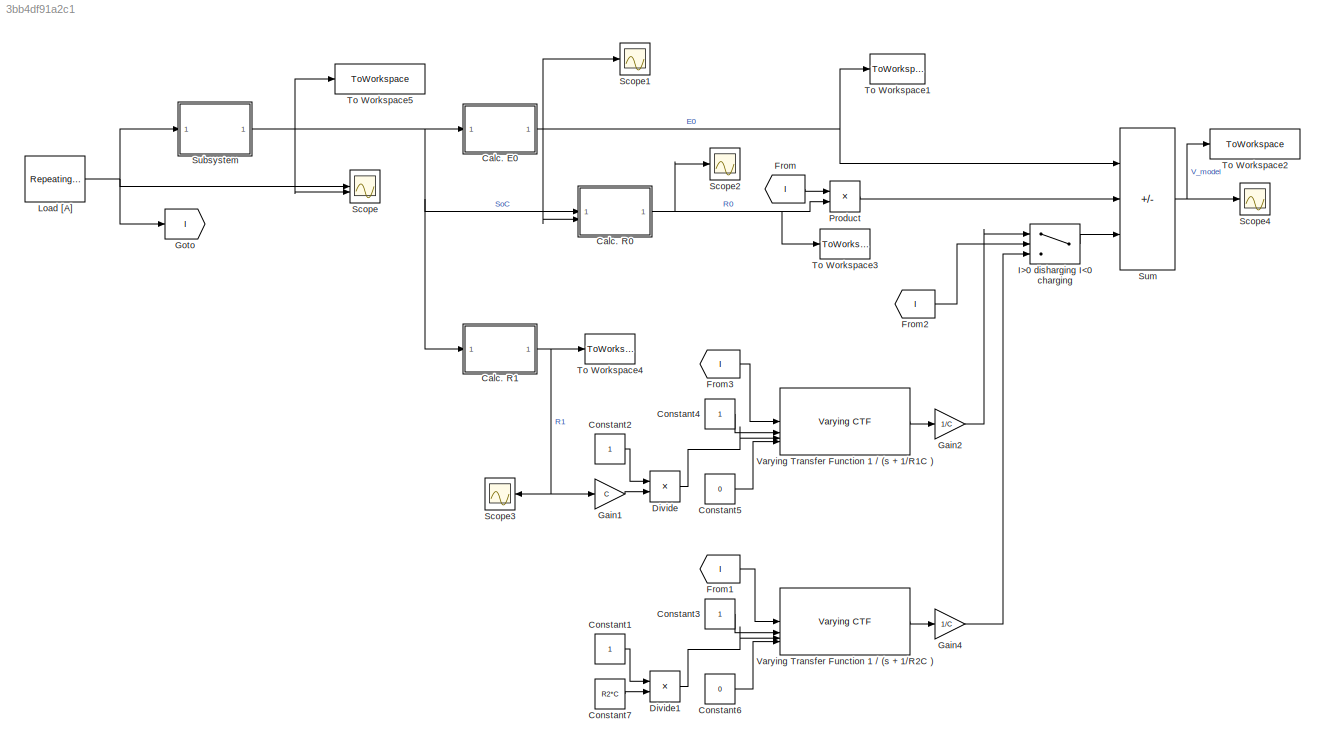
MODEL slx_3bb4df91a2c1
KIND model
CONFIG AbsTol = auto
CONFIG EnableMultiTasking = off
CONFIG FixedStep = 0.2
CONFIG MaxStep = auto
CONFIG MinStep = auto
CONFIG RelTol = 1e-3
CONFIG SampleTimeConstraint = Unconstrained
CONFIG SolverName = FixedStepAuto
CONFIG StartTime = 0.0
CONFIG StopTime = 15E3
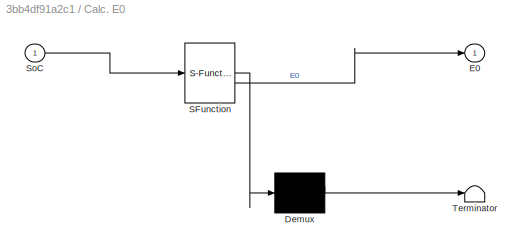
BLOCK [SubSystem] Calc. E0
  ErrorFcn = Stateflow.Translate.translate
  LibrarySourceBlock = simulink/User-Defined\nFunctions/MATLAB Function
  PermitHierarchicalResolution = ExplicitOnly
  SFBlockType = MATLAB Function
  TreatAsAtomicUnit = on
BLOCK [Demux] Calc. E0/ Demux 
  Outputs = 1
BLOCK [S-Function] Calc. E0/ SFunction 
  EnableBusSupport = on
  FunctionName = sf_sfun
  PortCounts = [1 2]
  SFcnIsStateOwnerBlock = off
  SFunctionDeploymentMode = off
  Tag = Stateflow S-Function 2
BLOCK [Terminator] Calc. E0/ Terminator 
BLOCK [Outport] Calc. E0/E0
BLOCK [Inport] Calc. E0/SoC
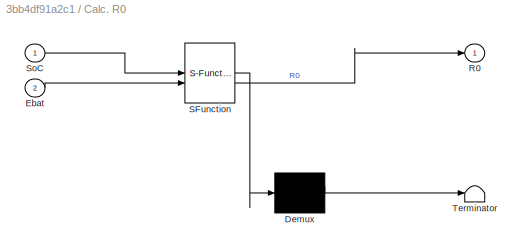
BLOCK [SubSystem] Calc. R0
  ErrorFcn = Stateflow.Translate.translate
  LibrarySourceBlock = simulink/User-Defined\nFunctions/MATLAB Function
  PermitHierarchicalResolution = ExplicitOnly
  SFBlockType = MATLAB Function
  TreatAsAtomicUnit = on
BLOCK [Demux] Calc. R0/ Demux 
  Outputs = 1
BLOCK [S-Function] Calc. R0/ SFunction 
  EnableBusSupport = on
  FunctionName = sf_sfun
  PortCounts = [2 2]
  SFcnIsStateOwnerBlock = off
  SFunctionDeploymentMode = off
  Tag = Stateflow S-Function 1
BLOCK [Terminator] Calc. R0/ Terminator 
BLOCK [Inport] Calc. R0/Ebat
  Port = 2
BLOCK [Outport] Calc. R0/R0
BLOCK [Inport] Calc. R0/SoC
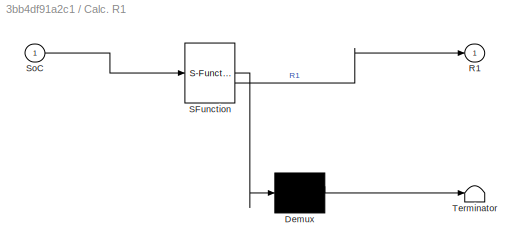
BLOCK [SubSystem] Calc. R1
  ErrorFcn = Stateflow.Translate.translate
  LibrarySourceBlock = simulink/User-Defined\nFunctions/MATLAB Function
  PermitHierarchicalResolution = ExplicitOnly
  SFBlockType = MATLAB Function
  TreatAsAtomicUnit = on
BLOCK [Demux] Calc. R1/ Demux 
  Outputs = 1
BLOCK [S-Function] Calc. R1/ SFunction 
  EnableBusSupport = on
  FunctionName = sf_sfun
  PortCounts = [1 2]
  SFcnIsStateOwnerBlock = off
  SFunctionDeploymentMode = off
  Tag = Stateflow S-Function 3
BLOCK [Terminator] Calc. R1/ Terminator 
BLOCK [Outport] Calc. R1/R1
BLOCK [Inport] Calc. R1/SoC
BLOCK [Constant] Constant1
BLOCK [Constant] Constant2
BLOCK [Constant] Constant3
BLOCK [Constant] Constant4
BLOCK [Constant] Constant5
  Value = 0
BLOCK [Constant] Constant6
  Value = 0
BLOCK [Constant] Constant7
  Value = R2*C
BLOCK [Product] Divide
  Inputs = */
BLOCK [Product] Divide1
  Inputs = */
BLOCK [From] From
  GotoTag = I
BLOCK [From] From1
  GotoTag = I
BLOCK [From] From2
  GotoTag = I
BLOCK [From] From3
  GotoTag = I
BLOCK [Gain] Gain1
  Gain = C
BLOCK [Gain] Gain2
  Gain = 1/C
BLOCK [Gain] Gain4
  Gain = 1/C
BLOCK [Goto] Goto
  GotoTag = I
BLOCK [Switch] I>0 disharging I<0 charging
  InputSameDT = off
  SaturateOnIntegerOverflow = off
BLOCK [Reference] Load [A]  REF=simulink/Sources/Repeating
Sequence
  SourceBlock = simulink/Sources/Repeating\nSequence
  SourceType = Repeating table
BLOCK [Product] Product
BLOCK [Scope] Scope
  Floating = off
  NumInputPorts = 2
  ScopeSpecificationString = Simulink.scopes.TimeScopeBlockCfg('CurrentConfiguration', extmgr.ConfigurationSet(extmgr.Configuration('Core','General UI',true),extmgr.Configuration('Core','Source UI',true),extmgr.Configuration('Sources','WiredSimulink',true),extmgr.Configuration('Visuals','Time Domain',true,'SerializedDisplays',{struct('MinYLimReal','-3.25','MaxYLimReal','3.25','YLabelReal','','MinYLimMag','0.00000','MaxYLimMag...<+2083ch>
BLOCK [Scope] Scope1
  Floating = off
  NumInputPorts = 1
  ScopeSpecificationString = Simulink.scopes.TimeScopeBlockCfg('CurrentConfiguration', extmgr.ConfigurationSet(extmgr.Configuration('Core','General UI',true),extmgr.Configuration('Core','Source UI',true),extmgr.Configuration('Sources','WiredSimulink',true,'DataLoggingVariableName','ScopeData1'),extmgr.Configuration('Visuals','Time Domain',true,'SerializedDisplays',{struct('MinYLimReal','3.65454','MaxYLimReal','4.2295','YLabel...<+1384ch>
BLOCK [Scope] Scope2
  Floating = off
  NumInputPorts = 1
  ScopeSpecificationString = Simulink.scopes.TimeScopeBlockCfg('CurrentConfiguration', extmgr.ConfigurationSet(extmgr.Configuration('Core','General UI',true),extmgr.Configuration('Core','Source UI',true),extmgr.Configuration('Sources','WiredSimulink',true,'DataLoggingVariableName','ScopeData2'),extmgr.Configuration('Visuals','Time Domain',true,'SerializedDisplays',{struct('MinYLimReal','0.07457','MaxYLimReal','0.07563','YLabe...<+1459ch>
BLOCK [Scope] Scope3
  Floating = off
  NameLocation = top
  NumInputPorts = 1
  ScopeSpecificationString = Simulink.scopes.TimeScopeBlockCfg('CurrentConfiguration', extmgr.ConfigurationSet(extmgr.Configuration('Core','General UI',true),extmgr.Configuration('Core','Source UI',true),extmgr.Configuration('Sources','WiredSimulink',true,'DataLoggingVariableName','ScopeData3'),extmgr.Configuration('Visuals','Time Domain',true,'SerializedDisplays',{struct('MinYLimReal','0.02188','MaxYLimReal','0.04312','YLabe...<+1388ch>
BLOCK [Scope] Scope4
  Floating = off
  NumInputPorts = 1
  ScopeSpecificationString = Simulink.scopes.TimeScopeBlockCfg('CurrentConfiguration', extmgr.ConfigurationSet(extmgr.Configuration('Core','General UI',true),extmgr.Configuration('Core','Source UI',true),extmgr.Configuration('Sources','WiredSimulink',true,'DataLoggingVariableName','ScopeData4'),extmgr.Configuration('Visuals','Time Domain',true,'SerializedDisplays',{struct('MinYLimReal','3.30783','MaxYLimReal','4.40497','YLabe...<+1464ch>
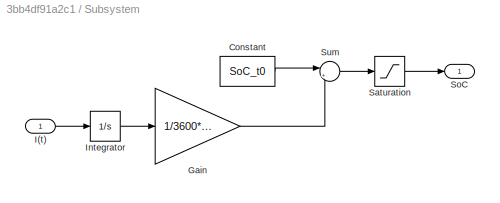
BLOCK [SubSystem] Subsystem
BLOCK [Constant] Subsystem/Constant
  Value = SoC_t0
BLOCK [Gain] Subsystem/Gain
  Gain = 1/3600*1/2.6
BLOCK [Inport] Subsystem/I(t)
BLOCK [Integrator] Subsystem/Integrator
BLOCK [Saturate] Subsystem/Saturation
  LowerLimit = 0
  UpperLimit = 1
BLOCK [Outport] Subsystem/SoC
BLOCK [Sum] Subsystem/Sum
  Inputs = |+-
BLOCK [Sum] Sum
  IconShape = rectangular
  Inputs = +--
BLOCK [ToWorkspace] To Workspace1
  FixptAsFi = on
  MaxDataPoints = inf
  SampleTime = -1
  SaveFormat = Timeseries
  VariableName = E0
BLOCK [ToWorkspace] To Workspace2
  FixptAsFi = on
  MaxDataPoints = inf
  SampleTime = -1
  SaveFormat = Timeseries
  VariableName = V_model
BLOCK [ToWorkspace] To Workspace3
  FixptAsFi = on
  MaxDataPoints = inf
  SampleTime = -1
  SaveFormat = Timeseries
  VariableName = R0
BLOCK [ToWorkspace] To Workspace4
  FixptAsFi = on
  MaxDataPoints = inf
  SampleTime = -1
  SaveFormat = Timeseries
  VariableName = R1
BLOCK [ToWorkspace] To Workspace5
  FixptAsFi = on
  MaxDataPoints = inf
  SampleTime = -1
  SaveFormat = Timeseries
  VariableName = SoC
BLOCK [Reference] Varying Transfer Function 1 // (s + 1//R1C )  REF=cstextras/Varying CTF  (lib defined in mdl_a5737024c95e)
  SourceBlock = cstextras/Varying CTF
  SourceType = Varying Transfer Function
BLOCK [Reference] Varying Transfer Function 1 // (s + 1//R2C )  REF=cstextras/Varying CTF  (lib defined in mdl_a5737024c95e)
  SourceBlock = cstextras/Varying CTF
  SourceType = Varying Transfer Function
NET Calc. E0:1 -> Calc. R0:2, Scope1:1, Sum:1, To Workspace1:1
NET Calc. R0:1 -> Product:2, Scope2:1, To Workspace3:1
NET Calc. R1:1 -> Gain1:1, Scope3:1, To Workspace4:1
LINE Constant1:1 -> Divide1:1
LINE Constant2:1 -> Divide:1
LINE Constant3:1 -> Varying Transfer Function 1 // (s + 1//R2C ):2
LINE Constant4:1 -> Varying Transfer Function 1 // (s + 1//R1C ):2
LINE Constant5:1 -> Varying Transfer Function 1 // (s + 1//R1C ):4
LINE Constant6:1 -> Varying Transfer Function 1 // (s + 1//R2C ):4
LINE Constant7:1 -> Divide1:2
LINE Divide1:1 -> Varying Transfer Function 1 // (s + 1//R2C ):3
LINE Divide:1 -> Varying Transfer Function 1 // (s + 1//R1C ):3
LINE From1:1 -> Varying Transfer Function 1 // (s + 1//R2C ):1
LINE From2:1 -> I>0 disharging I<0 charging:2
LINE From3:1 -> Varying Transfer Function 1 // (s + 1//R1C ):1
LINE From:1 -> Product:1
LINE Gain1:1 -> Divide:2
LINE Gain2:1 -> I>0 disharging I<0 charging:1
LINE Gain4:1 -> I>0 disharging I<0 charging:3
LINE I>0 disharging I<0 charging:1 -> Sum:3
NET Load [A]:1 -> Goto:1, Scope:1, Subsystem:1
LINE Product:1 -> Sum:2
LINE Subsystem/Constant:1 -> Subsystem/Sum:1
LINE Subsystem/Gain:1 -> Subsystem/Sum:2
LINE Subsystem/I(t):1 -> Subsystem/Integrator:1
LINE Subsystem/Integrator:1 -> Subsystem/Gain:1
LINE Subsystem/Saturation:1 -> Subsystem/SoC:1
LINE Subsystem/Sum:1 -> Subsystem/Saturation:1
NET Subsystem:1 -> Calc. E0:1, Calc. R0:1, Calc. R1:1, Scope:2, To Workspace5:1
NET Sum:1 -> Scope4:1, To Workspace2:1
LINE Varying Transfer Function 1 // (s + 1//R1C ):1 -> Gain2:1
LINE Varying Transfer Function 1 // (s + 1//R2C ):1 -> Gain4:1
note: NET lines group one-source signal fan-out (src -> all destinations, sorted); 1:1 wires keep LINE
CHART Calc. E0 states=1 transitions=1
  STATE_LABEL 'eML_blk_kernel()'
  STATE_LABEL 'SCRIPT:\nfunction E0 = fcn(SoC)\nebat0 = 3.288;\nebat1 = 1.813;\nebat2 = -4.205;\nebat3 = 5.306;\nebat4 = -2.03;\n\nE0 = ebat0 + ebat1.*SoC + ebat2.*SoC^2 + ebat3.*SoC^3 + ebat4.*SoC^4;\n'
CHART Calc. R1 states=1 transitions=1
  STATE_LABEL 'eML_blk_kernel()'
  STATE_LABEL 'SCRIPT:\nfunction R1 = fcn(SoC)\ndint0 = 0.065;\ndint1 = -0.057;\ndint2 = -0.029;\ndint3 = 0.161;\ndint4 = -0.116;\n\nR1 = dint0 + dint1.*SoC + dint2.*SoC^2 + dint3.*SoC^3 + dint4.*SoC^4;\n'
CHART Calc. R0 states=1 transitions=1
  STATE_LABEL 'eML_blk_kernel()'
  STATE_LABEL 'SCRIPT:\nfunction R0 = fcn(SoC,Ebat)\nrsint0 = 0.053;\nrsint1 = 0.005;\nrsint2 = 0.004;\nrsint3 = -2;\nrsint4 = 3.6;\n\nR0 = rsint0 + rsint1*Ebat + rsint2*exp(rsint3*(Ebat-rsint4));'
CHART  states=0 transitions=0
CHART  states=0 transitions=0
CHART  states=0 transitions=0
